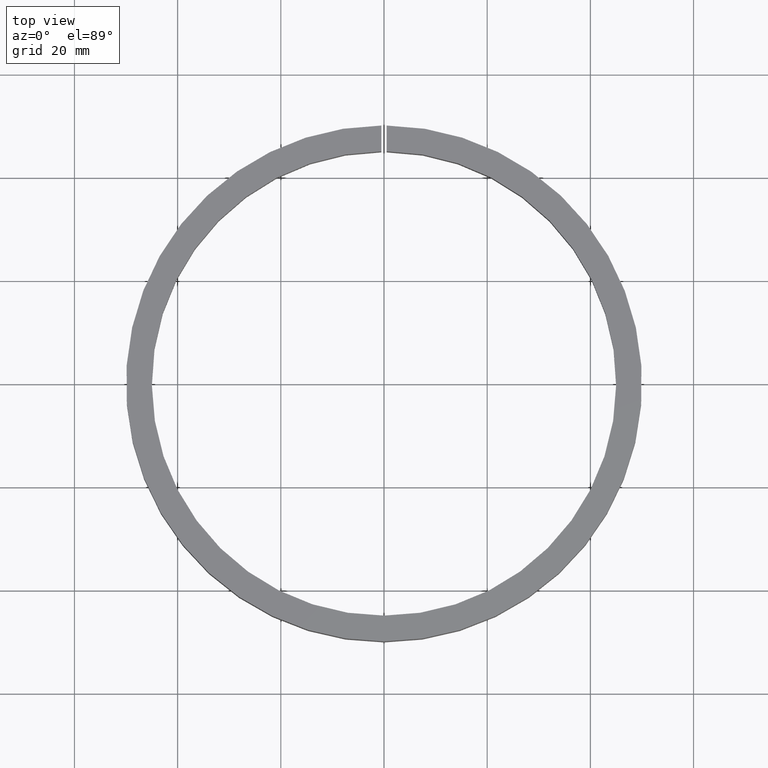
[diagram: clean part render]
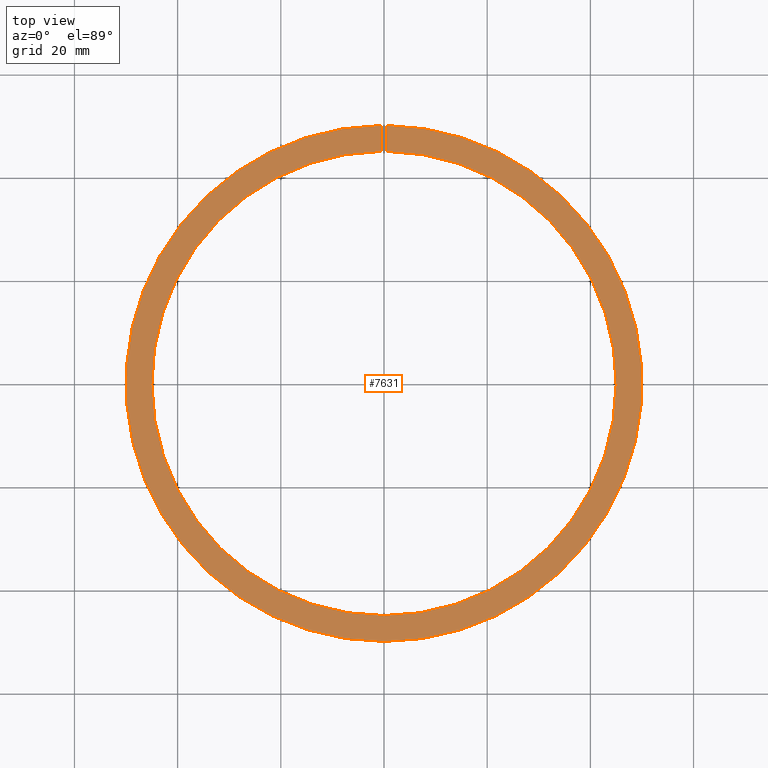
[diagram: same view with one face highlighted and labeled with its STEP entity id]
A machine part, top view. The second image highlights one B-rep face of the part: STEP entity #7631.
In plain terms, the highlighted planar face has unit normal (-0, 0, -1).
Its self-contained STEP definition (entity closure, byte-faithful):
#810 = LINE ( 'NONE', #844, #5876 ) ;
#844 = CARTESIAN_POINT ( 'NONE',  ( 0.5000000000000000000, 0.000000000000000000, 5.999999999999996447 ) ) ;
#1019 = EDGE_CURVE ( 'NONE', #11989, #11657, #810, .T. ) ;
#1067 = ORIENTED_EDGE ( 'NONE', *, *, #1896, .T. ) ;
#1157 = CARTESIAN_POINT ( 'NONE',  ( 0.5000000000000000000, 49.99749993749687604, 5.999999999999996447 ) ) ;
#1422 = PLANE ( 'NONE',  #1757 ) ;
#1624 = DIRECTION ( 'NONE',  ( 0.000000000000000000, 1.000000000000000000, -0.000000000000000000 ) ) ;
#1757 = AXIS2_PLACEMENT_3D ( 'NONE', #10962, #11929, #6197 ) ;
#1896 = EDGE_CURVE ( 'NONE', #11989, #6311, #10073, .T. ) ;
#2119 = VERTEX_POINT ( 'NONE', #2486 ) ;
#2184 = CARTESIAN_POINT ( 'NONE',  ( -0.5000000000000000000, 44.99722213648305313, 5.999999999999996447 ) ) ;
#2262 = CARTESIAN_POINT ( 'NONE',  ( -0.5000000000000000000, 0.000000000000000000, 5.999999999999996447 ) ) ;
#2486 = CARTESIAN_POINT ( 'NONE',  ( -0.5000000000000000000, 49.99749993749687604, 5.999999999999996447 ) ) ;
#2772 = DIRECTION ( 'NONE',  ( -1.000000000000000000, 0.000000000000000000, 0.000000000000000000 ) ) ;
#2792 = CARTESIAN_POINT ( 'NONE',  ( 0.000000000000000000, 0.000000000000000000, 5.999999999999996447 ) ) ;
#3057 = VECTOR ( 'NONE', #9966, 1000.000000000000000 ) ;
#3591 = EDGE_CURVE ( 'NONE', #11657, #2119, #11881, .T. ) ;
#4761 = DIRECTION ( 'NONE',  ( -1.000000000000000000, 0.000000000000000000, 0.000000000000000000 ) ) ;
#4859 = FACE_OUTER_BOUND ( 'NONE', #5500, .T. ) ;
#5500 = EDGE_LOOP ( 'NONE', ( #12468, #11386, #1067, #5807 ) ) ;
#5807 = ORIENTED_EDGE ( 'NONE', *, *, #7031, .T. ) ;
#5876 = VECTOR ( 'NONE', #1624, 1000.000000000000000 ) ;
#6197 = DIRECTION ( 'NONE',  ( -1.000000000000000000, 0.000000000000000000, 0.000000000000000000 ) ) ;
#6311 = VERTEX_POINT ( 'NONE', #2184 ) ;
#6399 = AXIS2_PLACEMENT_3D ( 'NONE', #2792, #9487, #4761 ) ;
#7031 = EDGE_CURVE ( 'NONE', #6311, #2119, #11752, .T. ) ;
#7631 = ADVANCED_FACE ( 'NONE', ( #4859 ), #1422, .F. ) ;
#7665 = CARTESIAN_POINT ( 'NONE',  ( 0.000000000000000000, 0.000000000000000000, 5.999999999999996447 ) ) ;
#8512 = DIRECTION ( 'NONE',  ( -0.000000000000000000, -0.000000000000000000, -1.000000000000000000 ) ) ;
#9487 = DIRECTION ( 'NONE',  ( -0.000000000000000000, -0.000000000000000000, -1.000000000000000000 ) ) ;
#9966 = DIRECTION ( 'NONE',  ( 0.000000000000000000, 1.000000000000000000, -0.000000000000000000 ) ) ;
#10073 = CIRCLE ( 'NONE', #6399, 45.00000000000000711 ) ;
#10885 = AXIS2_PLACEMENT_3D ( 'NONE', #7665, #8512, #2772 ) ;
#10962 = CARTESIAN_POINT ( 'NONE',  ( 0.000000000000000000, -45.00000000000000711, 5.999999999999996447 ) ) ;
#11386 = ORIENTED_EDGE ( 'NONE', *, *, #1019, .F. ) ;
#11657 = VERTEX_POINT ( 'NONE', #1157 ) ;
#11740 = CARTESIAN_POINT ( 'NONE',  ( 0.5000000000000000000, 44.99722213648305313, 5.999999999999996447 ) ) ;
#11752 = LINE ( 'NONE', #2262, #3057 ) ;
#11881 = CIRCLE ( 'NONE', #10885, 50.00000000000000000 ) ;
#11929 = DIRECTION ( 'NONE',  ( -0.000000000000000000, 0.000000000000000000, -1.000000000000000000 ) ) ;
#11989 = VERTEX_POINT ( 'NONE', #11740 ) ;
#12468 = ORIENTED_EDGE ( 'NONE', *, *, #3591, .F. ) ;